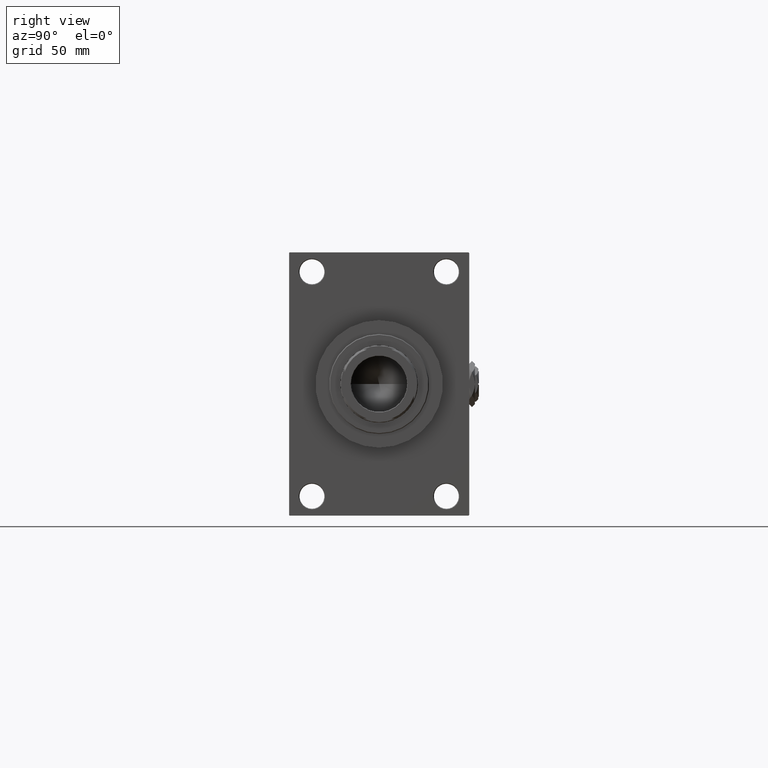
[diagram: clean part render]
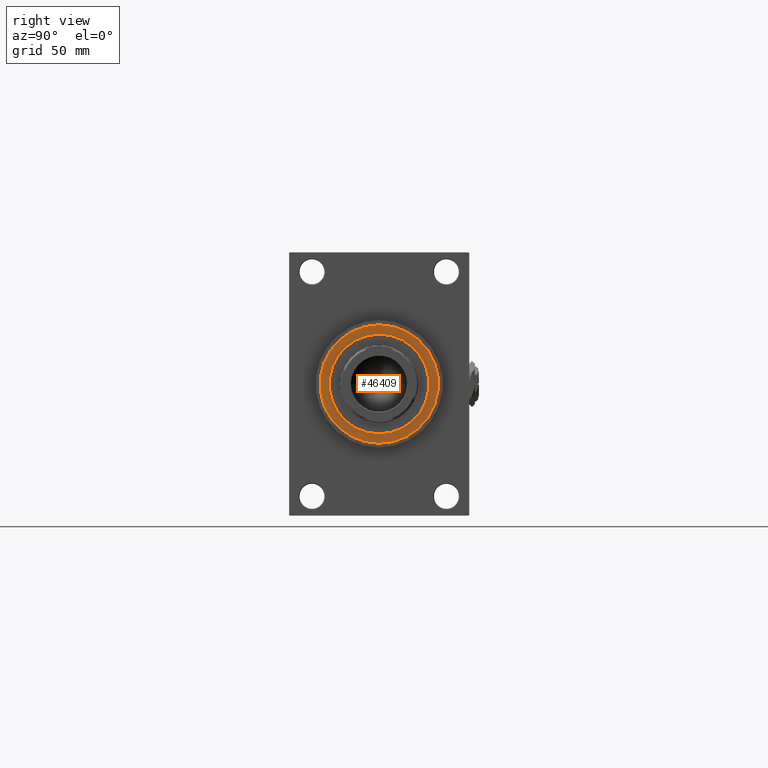
[diagram: same view with one face highlighted and labeled with its STEP entity id]
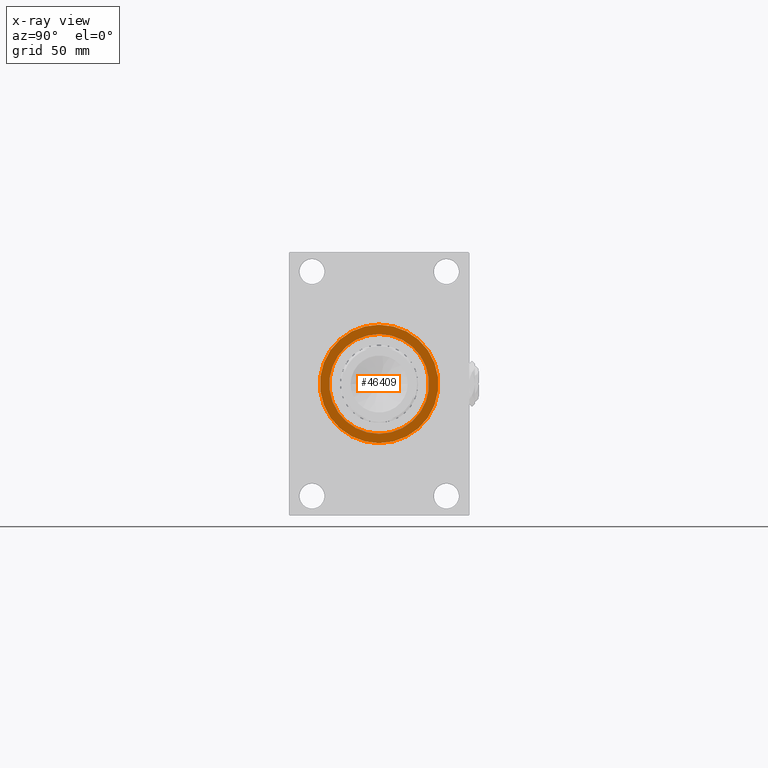
[diagram: x-ray of the same camera — body ghosted, the highlighted face saturated]
A machine part, right view. The second image highlights one B-rep face of the part: STEP entity #46409.
The next image is the same camera in x-ray: the body ghosted, the highlighted face saturated — about 0% of this face is hidden behind the body in this view.
In plain terms, the highlighted planar face has unit normal (1, -0, -0).
Its self-contained STEP definition (entity closure, byte-faithful):
#389 = EDGE_CURVE ( 'NONE', #31261, #38532, #10446, .T. ) ;
#2650 = CARTESIAN_POINT ( 'NONE',  ( 0.000000000000000000, 0.000000000000000000, 43.25999999999999801 ) ) ;
#3844 = AXIS2_PLACEMENT_3D ( 'NONE', #2650, #37428, #9957 ) ;
#4953 = PLANE ( 'NONE',  #9495 ) ;
#5712 = DIRECTION ( 'NONE',  ( 1.000000000000000000, 0.000000000000000000, -0.000000000000000000 ) ) ;
#7585 = CARTESIAN_POINT ( 'NONE',  ( 0.000000000000000000, 0.000000000000000000, 43.25999999999999801 ) ) ;
#9233 = FACE_OUTER_BOUND ( 'NONE', #39282, .T. ) ;
#9495 = AXIS2_PLACEMENT_3D ( 'NONE', #39480, #13512, #5712 ) ;
#9601 = CARTESIAN_POINT ( 'NONE',  ( 42.75000000000000000, 5.235365066354935472E-15, 43.25999999999999801 ) ) ;
#9957 = DIRECTION ( 'NONE',  ( 1.000000000000000000, 0.000000000000000000, 0.000000000000000000 ) ) ;
#10446 = CIRCLE ( 'NONE', #19296, 42.75000000000000000 ) ;
#12127 = ORIENTED_EDGE ( 'NONE', *, *, #23801, .F. ) ;
#12333 = DIRECTION ( 'NONE',  ( 1.000000000000000000, 0.000000000000000000, 0.000000000000000000 ) ) ;
#13512 = DIRECTION ( 'NONE',  ( 0.000000000000000000, 0.000000000000000000, 1.000000000000000000 ) ) ;
#15676 = AXIS2_PLACEMENT_3D ( 'NONE', #7585, #22466, #37841 ) ;
#16116 = DIRECTION ( 'NONE',  ( 0.000000000000000000, 0.000000000000000000, 1.000000000000000000 ) ) ;
#16520 = CARTESIAN_POINT ( 'NONE',  ( 36.00000000000000000, 4.408728476930470856E-15, 43.25999999999999801 ) ) ;
#17267 = CIRCLE ( 'NONE', #15676, 36.00000000000000000 ) ;
#19296 = AXIS2_PLACEMENT_3D ( 'NONE', #43120, #28502, #28752 ) ;
#20340 = ORIENTED_EDGE ( 'NONE', *, *, #389, .T. ) ;
#20790 = CIRCLE ( 'NONE', #23208, 42.75000000000000000 ) ;
#22466 = DIRECTION ( 'NONE',  ( 0.000000000000000000, 0.000000000000000000, 1.000000000000000000 ) ) ;
#23208 = AXIS2_PLACEMENT_3D ( 'NONE', #47130, #16116, #12333 ) ;
#23801 = EDGE_CURVE ( 'NONE', #48670, #41722, #17267, .T. ) ;
#28502 = DIRECTION ( 'NONE',  ( 0.000000000000000000, 0.000000000000000000, 1.000000000000000000 ) ) ;
#28724 = CARTESIAN_POINT ( 'NONE',  ( -36.00000000000000000, 0.000000000000000000, 43.25999999999999801 ) ) ;
#28752 = DIRECTION ( 'NONE',  ( 1.000000000000000000, 0.000000000000000000, 0.000000000000000000 ) ) ;
#31261 = VERTEX_POINT ( 'NONE', #43637 ) ;
#34213 = EDGE_CURVE ( 'NONE', #41722, #48670, #36833, .T. ) ;
#35005 = EDGE_CURVE ( 'NONE', #38532, #31261, #20790, .T. ) ;
#36833 = CIRCLE ( 'NONE', #3844, 36.00000000000000000 ) ;
#37428 = DIRECTION ( 'NONE',  ( 0.000000000000000000, 0.000000000000000000, 1.000000000000000000 ) ) ;
#37841 = DIRECTION ( 'NONE',  ( 1.000000000000000000, 0.000000000000000000, 0.000000000000000000 ) ) ;
#38532 = VERTEX_POINT ( 'NONE', #9601 ) ;
#39282 = EDGE_LOOP ( 'NONE', ( #20340, #40955 ) ) ;
#39480 = CARTESIAN_POINT ( 'NONE',  ( 0.000000000000000000, 0.000000000000000000, 43.25999999999999801 ) ) ;
#40955 = ORIENTED_EDGE ( 'NONE', *, *, #35005, .T. ) ;
#41722 = VERTEX_POINT ( 'NONE', #16520 ) ;
#42234 = ORIENTED_EDGE ( 'NONE', *, *, #34213, .F. ) ;
#43120 = CARTESIAN_POINT ( 'NONE',  ( 0.000000000000000000, 0.000000000000000000, 43.25999999999999801 ) ) ;
#43637 = CARTESIAN_POINT ( 'NONE',  ( -42.75000000000000000, 0.000000000000000000, 43.25999999999999801 ) ) ;
#43768 = FACE_BOUND ( 'NONE', #46374, .T. ) ;
#46374 = EDGE_LOOP ( 'NONE', ( #12127, #42234 ) ) ;
#46409 = ADVANCED_FACE ( 'NONE', ( #43768, #9233 ), #4953, .T. ) ;
#47130 = CARTESIAN_POINT ( 'NONE',  ( 0.000000000000000000, 0.000000000000000000, 43.25999999999999801 ) ) ;
#48670 = VERTEX_POINT ( 'NONE', #28724 ) ;